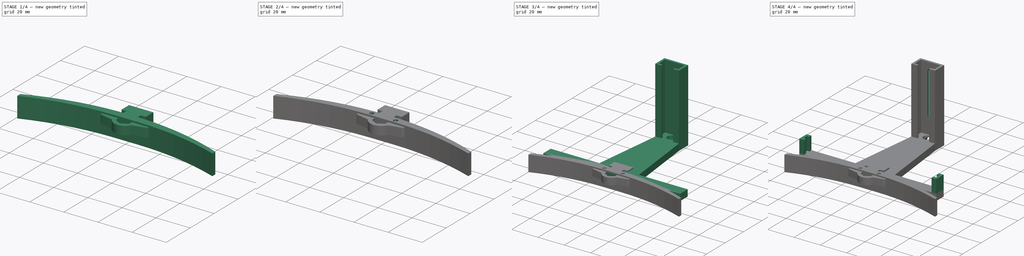
[diagram: build sequence overview — one tinted view per stage of 4, left to right]
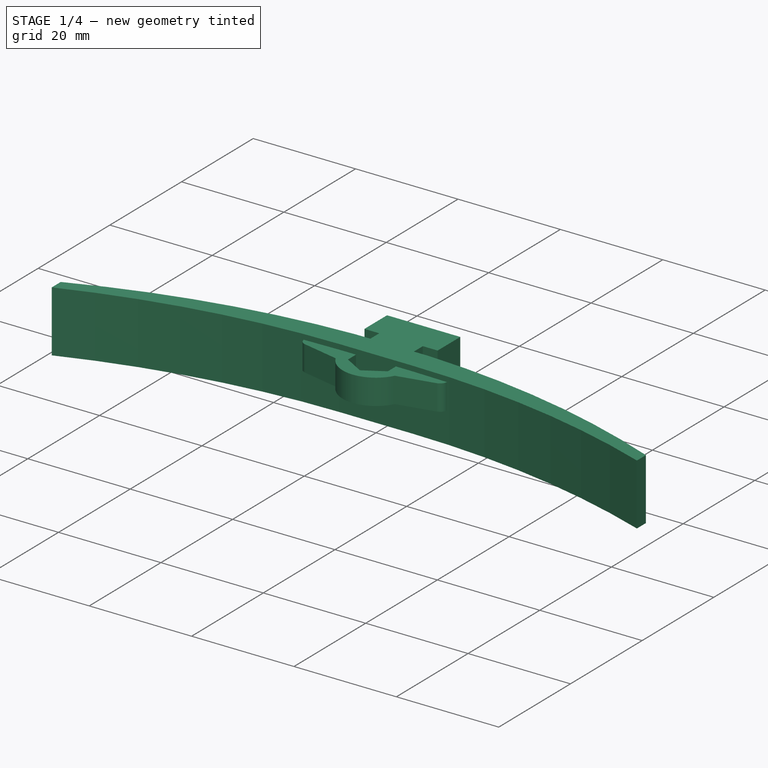
[diagram: stage 1 of 4 — iso view after this stage's code; geometry added in this stage tinted green]
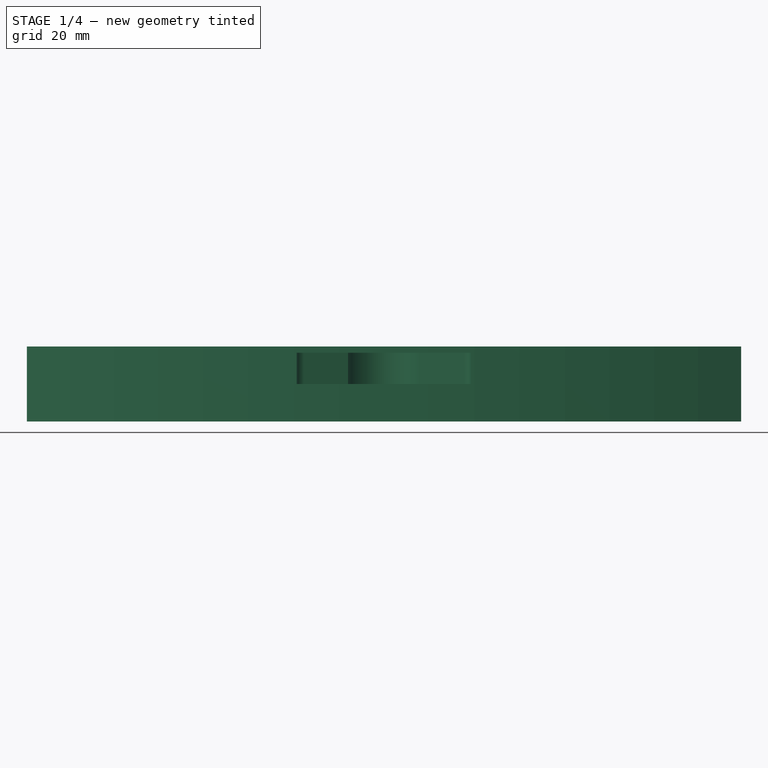
[diagram: stage 1 of 4 — front view after this stage's code; geometry added in this stage tinted green]
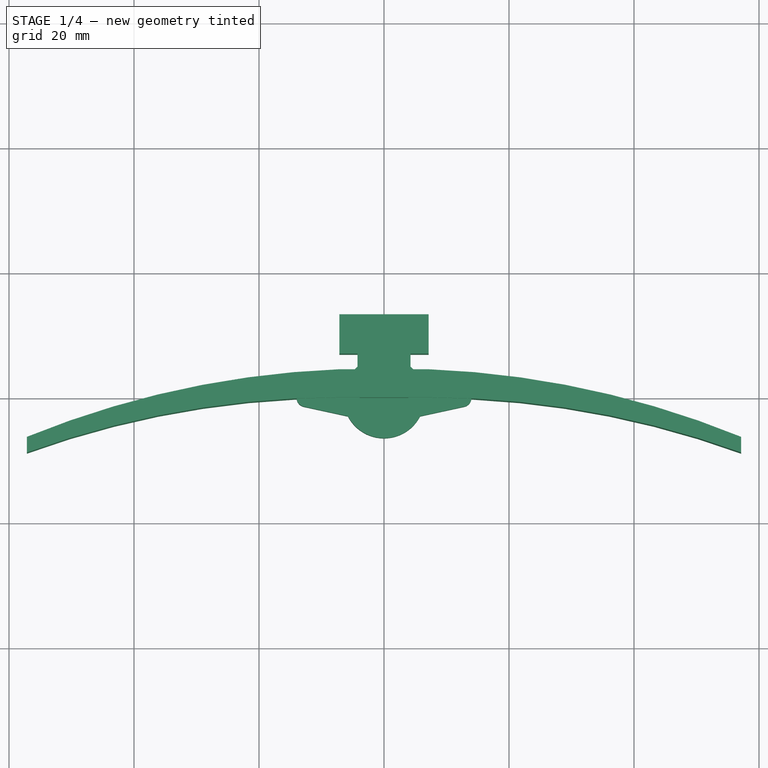
[diagram: stage 1 of 4 — top view after this stage's code; geometry added in this stage tinted green]
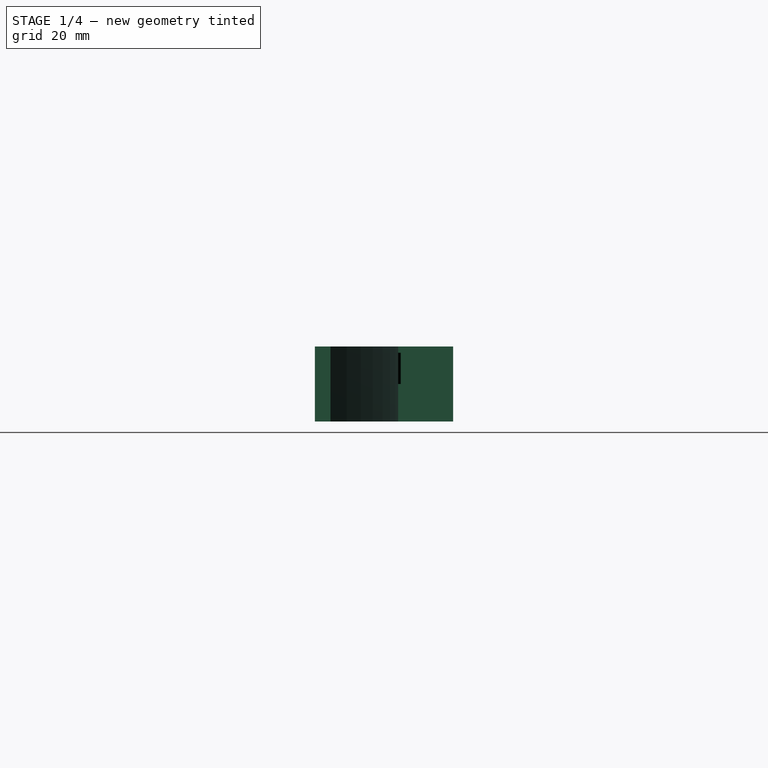
[diagram: stage 1 of 4 — right view after this stage's code; geometry added in this stage tinted green]
FCSTD DOCUMENT  (FreeCAD 0.18R16146 (Git))
Label: marco_litografia
License: CreativeCommons Attribution-NonCommercial
LicenseURL: http://creativecommons.org/licenses/by-nc/4.0/
objects: Sketcher::SketchObject×11, PartDesign::Pad×5, PartDesign::Pocket×5, PartDesign::Body×3, PartDesign::Hole×1
note: 36 computed .brp shape members not serialized (recipe doc carries the construction recipe); baked Part::Feature solids carry a one-line shape summary decoded from their .brp

FEATURE [Sketcher::SketchObject] Sketch002
  ExternalGeometry = -> [Pad001]
  MapMode = 5
  Placement = pos=(0,70,0) rot=(0,0.707107,0.707107;3.14159rad)
  Support = -> [Pad001]
  sketch-geometry (4):
    g0: ArcOfCircle CenterX=0 CenterY=48 CenterZ=0 NormalX=0 NormalY=0 NormalZ=1 AngleXU=0 Radius=2.625 StartAngle=-4.35e-14 EndAngle=3.14159
    g1: ArcOfCircle CenterX=2.3e-15 CenterY=18 CenterZ=0 NormalX=0 NormalY=0 NormalZ=1 AngleXU=0 Radius=2.625 StartAngle=3.14159 EndAngle=6.28319
    g2: LineSegment StartX=-2.625 StartY=48 StartZ=0 EndX=-2.625 EndY=18 EndZ=0
    g3: LineSegment StartX=2.625 StartY=48 StartZ=0 EndX=2.625 EndY=18 EndZ=0
  constraints (10):
    c: Tangent(g0,g3) = 1.5708
    c: Tangent(g0,g2) = -1.5708
    c: Tangent(g2,g1) = -1.5708
    c: Tangent(g3,g1) = 1.5708
    c: Vertical(g2)
    c: Equal(g0,g1)
    c: PointOnObject(g0,g-2)
    c: DistanceX(g0,g0) = 5.25
    c: DistanceY(g1,g0) = 30
    c: DistanceY(g-1,g1) = 18
FEATURE [Sketcher::SketchObject] Sketch003
  MapMode = 5
  Support = -> [XY_Plane001]
  sketch-geometry (16):
    g0: LineSegment StartX=-7.15 StartY=13.3 StartZ=0 EndX=7.15 EndY=13.3 EndZ=0
    g1: LineSegment StartX=7.15 StartY=13.3 StartZ=0 EndX=7.15 EndY=7 EndZ=0
    g2: LineSegment StartX=-7.15 StartY=7 StartZ=0 EndX=-7.15 EndY=13.3 EndZ=0
    g3: LineSegment StartX=-7.15 StartY=7 StartZ=0 EndX=-4.25 EndY=7 EndZ=0
    g4: LineSegment StartX=-4.25 StartY=7 StartZ=0 EndX=-4.25 EndY=4.5 EndZ=0
    g5: LineSegment StartX=-7.15 StartY=0 StartZ=0 EndX=7.15 EndY=0 EndZ=0
    g6: LineSegment StartX=7.15 StartY=4.5 StartZ=0 EndX=4.25 EndY=4.5 EndZ=0
    g7: LineSegment StartX=4.25 StartY=4.5 StartZ=0 EndX=4.25 EndY=7 EndZ=0
    g8: LineSegment StartX=4.25 StartY=7 StartZ=0 EndX=7.15 EndY=7 EndZ=0
    g9: ArcOfCircle CenterX=-7.15 CenterY=-146.19 CenterZ=0 NormalX=0 NormalY=0 NormalZ=1 AngleXU=0 Radius=146.19 StartAngle=1.5708 EndAngle=1.91986
    g10: ArcOfCircle CenterX=7.15 CenterY=-146.19 CenterZ=0 NormalX=0 NormalY=0 NormalZ=1 AngleXU=0 Radius=146.19 StartAngle=1.22173 EndAngle=1.5708
    g11: LineSegment StartX=-57.15 StartY=-8.81635 StartZ=0 EndX=-57.15 EndY=-6.31635 EndZ=0
    g12: ArcOfCircle CenterX=-1.47872 CenterY=-142.69 CenterZ=0 NormalX=0 NormalY=0 NormalZ=1 AngleXU=0 Radius=147.299 StartAngle=1.60931 EndAngle=1.95837
    g13: ArcOfCircle CenterX=1.47872 CenterY=-142.69 CenterZ=0 NormalX=0 NormalY=0 NormalZ=1 AngleXU=0 Radius=147.299 StartAngle=1.18322 EndAngle=1.53229
    g14: LineSegment StartX=57.15 StartY=-8.81635 StartZ=0 EndX=57.15 EndY=-6.31635 EndZ=0
    g15: LineSegment StartX=-7.15 StartY=4.5 StartZ=0 EndX=-4.25 EndY=4.5 EndZ=0
  constraints (46):
    c: Coincident(g0,g1)
    c: Coincident(g2,g0)
    c: Vertical(g1)
    c: Vertical(g2)
    c: Symmetric(g0,g0,g-2)
    c: DistanceX(g0,g0) = 14.3
    c: DistanceY(g2,g2) = 6.3
    c: Coincident(g2,g3)
    c: Horizontal(g3)
    c: Coincident(g3,g4)
    c: Vertical(g4)
    c: Horizontal(g6)
    c: Coincident(g6,g7)
    c: Coincident(g7,g8)
    c: Coincident(g8,g1)
    c: Horizontal(g8)
    c: DistanceX(g3,g7) = 8.5
    c: DistanceY(g4,g4) = 2.5
    c: Equal(g4,g7)
    c: Symmetric(g3,g7,g-2)
    c: Symmetric(g10,g9,g-2)
    c: Coincident(g11,g9)
    c: Vertical(g11)
    c: DistanceY(g11,g11) = 2.5
    c: Coincident(g12,g11)
    c: Vertical(g14)
    c: Coincident(g13,g14)
    c: Equal(g11,g14)
    c: Equal(g9,g10)
    c: Equal(g12,g13)
    c: Coincident(g10,g14)
    c: Angle(g12) = 0.349066
    c: DistanceY(g5,g12) = 4.5
    c: Tangent(g10,g5) = 1.5708
    c: Tangent(g9,g5) = 1.5708
    c: Horizontal(g5)
    c: PointOnObject(g5,g-1)
    c: Symmetric(g12,g13,g-2)
    c: Coincident(g15,g4)
    c: Vertical(g7)
    c: Angle(g9) = 0.349066
    c: Vertical(g5,g12)
    c: Vertical(g15,g2)
    c: DistanceX(g9,g5) = 50
    c: Coincident(g6,g13)
    c: Coincident(g12,g15)
FEATURE [PartDesign::Pad] Pad002
  Length = 12
  Length2 = 100
  Midplane = true
  Profile = -> Sketch003
  Type = 0
FEATURE [PartDesign::Body] Body001  label="Soporte Luces"
  Group = -> [Pad002,Sketch003,Sketch004,Hole,Sketch012,Pocket005,Sketch013,Pocket006]
  Origin = -> Origin001
  Placement = pos=(0,-20,6) rot=(0,0,1;0rad)
  Tip = -> Pocket006
FEATURE [Sketcher::SketchObject] Sketch014
  MapMode = 5
  Support = -> [XY_Plane002]
  sketch-geometry (8):
    g0: ArcOfCircle CenterX=0 CenterY=0 CenterZ=0 NormalX=0 NormalY=0 NormalZ=1 AngleXU=0 Radius=6.5 StartAngle=3.62132 EndAngle=5.80346
    g1: LineSegment StartX=-5.76628 StartY=3 StartZ=0 EndX=-12.8189 EndY=1.46572 EndZ=0
    g2: ArcOfCircle CenterX=-12.5 CenterY=0 CenterZ=0 NormalX=0 NormalY=0 NormalZ=1 AngleXU=0 Radius=1.5 StartAngle=1.78501 EndAngle=4.49818
    g3: LineSegment StartX=-12.8189 StartY=-1.46572 StartZ=0 EndX=-5.76628 EndY=-3 EndZ=0
    g4: LineSegment StartX=12.8189 StartY=-1.46572 StartZ=0 EndX=5.76628 EndY=-3 EndZ=0
    g5: ArcOfCircle CenterX=12.5 CenterY=0 CenterZ=0 NormalX=0 NormalY=0 NormalZ=1 AngleXU=0 Radius=1.5 StartAngle=4.9266 EndAngle=7.63977
    g6: LineSegment StartX=5.76628 StartY=3 StartZ=0 EndX=12.8189 EndY=1.46572 EndZ=0
    g7: ArcOfCircle CenterX=0 CenterY=0 CenterZ=0 NormalX=0 NormalY=0 NormalZ=1 AngleXU=0 Radius=6.5 StartAngle=0.479729 EndAngle=2.66186
  constraints (22):
    c: Coincident(g0,g-1)
    c: Diameter(g0) = 13
    c: PointOnObject(g2,g-1)
    c: Vertical(g2,g1)
    c: Diameter(g2) = 3
    c: Tangent(g2,g3) = -1.5708
    c: Tangent(g2,g1) = -1.5708
    c: DistanceX(g2,g0) = 12.5
    c: Tangent(g5,g4) = 1.5708
    c: Tangent(g5,g6) = 1.5708
    c: Vertical(g4,g6)
    c: Vertical(g5,g4)
    c: Symmetric(g2,g5,g-2)
    c: Coincident(g0,g3)
    c: Coincident(g7,g1)
    c: Equal(g0,g7)
    c: PointOnObject(g0,g4)
    c: PointOnObject(g7,g6)
    c: Coincident(g0,g7)
    c: Symmetric(g1,g6,g-2)
    c: DistanceY(g0,g1) = 6
    c: Equal(g2,g5)
FEATURE [PartDesign::Pad] Pad004
  Length = 5
  Length2 = 100
  Profile = -> Sketch014
  Type = 0
FEATURE [Sketcher::SketchObject] Sketch015
  MapMode = 5
  Placement = pos=(0,0,5) rot=(0,0,1;0rad)
  Support = -> [Pad004]
  sketch-geometry (7):
    g0: LineSegment StartX=3.89711 StartY=-2.25 StartZ=0 EndX=3.89711 EndY=2.25 EndZ=0
    g1: LineSegment StartX=3.89711 StartY=2.25 StartZ=0 EndX=-9e-16 EndY=4.5 EndZ=0
    g2: LineSegment StartX=-9e-16 StartY=4.5 StartZ=0 EndX=-3.89711 EndY=2.25 EndZ=0
    g3: LineSegment StartX=-3.89711 StartY=2.25 StartZ=0 EndX=-3.89711 EndY=-2.25 EndZ=0
    g4: LineSegment StartX=-3.89711 StartY=-2.25 StartZ=0 EndX=0 EndY=-4.5 EndZ=0
    g5: LineSegment StartX=0 StartY=-4.5 StartZ=0 EndX=3.89711 EndY=-2.25 EndZ=0
    g6: Circle [constr] CenterX=0 CenterY=0 CenterZ=0 NormalX=0 NormalY=0 NormalZ=1 AngleXU=0 Radius=4.5
  constraints (16):
    c: Coincident(g0,g1)
    c: Coincident(g1,g2)
    c: Coincident(g2,g3)
    c: Coincident(g3,g4)
    c: Coincident(g4,g5)
    c: Coincident(g5,g0)
    c: Equal(g0, g1-g5) x5
    c: PointOnObject(g0,g6)
    c: PointOnObject(g1,g6)
    c: PointOnObject(g2,g6)
    c: PointOnObject(g3,g6)
    c: PointOnObject(g4,g6)
    c: PointOnObject(g5,g6)
    c: Coincident(g6,g-1)
    c: Diameter(g6) = 9
    c: PointOnObject(g4,g-2)
FEATURE [PartDesign::Pocket] Pocket007
  BaseFeature = -> Pad004
  Length = 3.5
  Length2 = 100
  Profile = -> Sketch015
  Type = 0
FEATURE [PartDesign::Body] Body002  label="Palomilla"
  Group = -> [Sketch014,Pad004,Sketch015,Pocket007]
  Origin = -> Origin002
  Placement = pos=(30,25,0) rot=(0,0,1;0rad)
  Tip = -> Pocket007
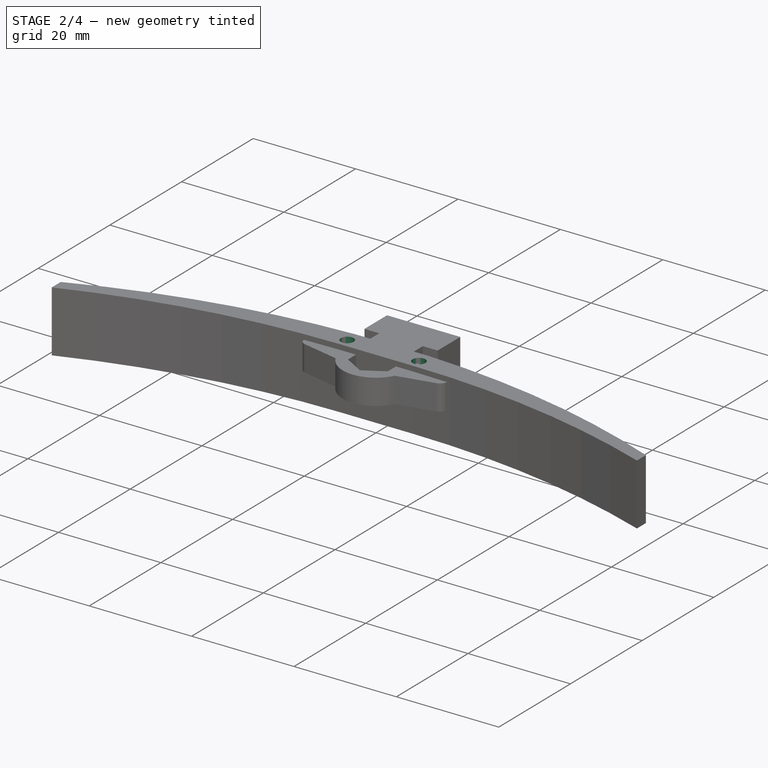
[diagram: stage 2 of 4 — iso view after this stage's code; geometry added in this stage tinted green]
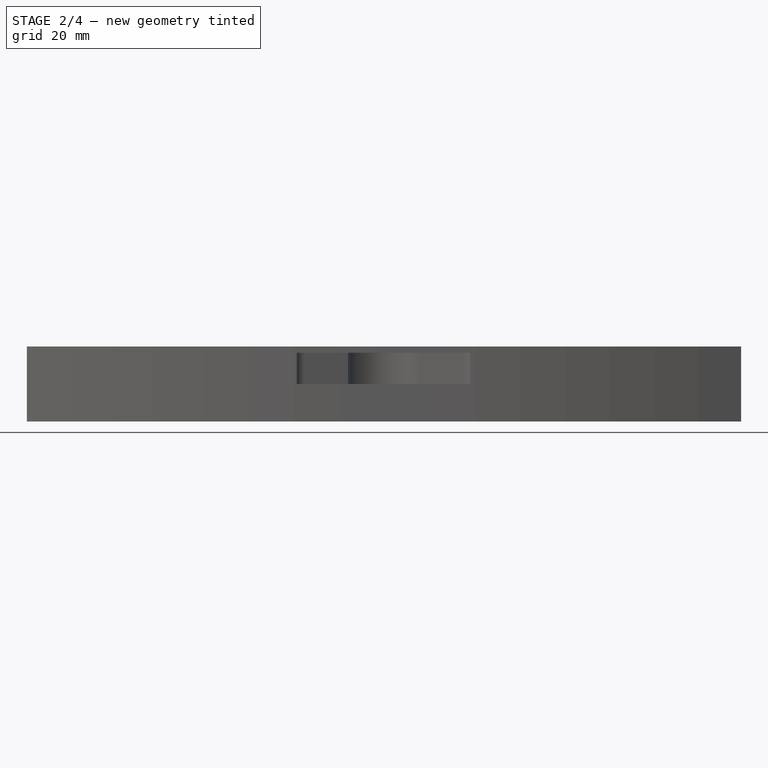
[diagram: stage 2 of 4 — front view after this stage's code; geometry added in this stage tinted green]
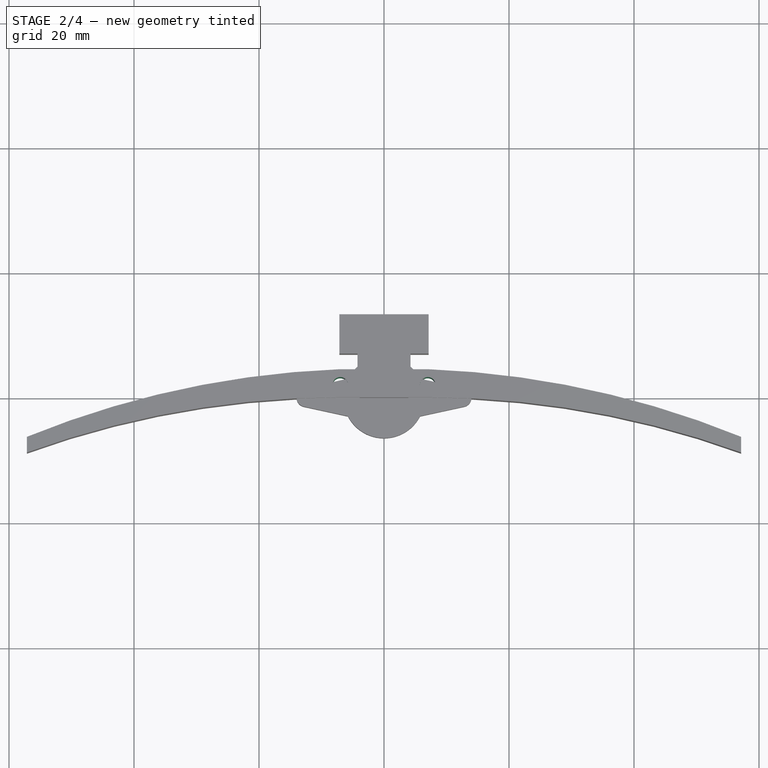
[diagram: stage 2 of 4 — top view after this stage's code; geometry added in this stage tinted green]
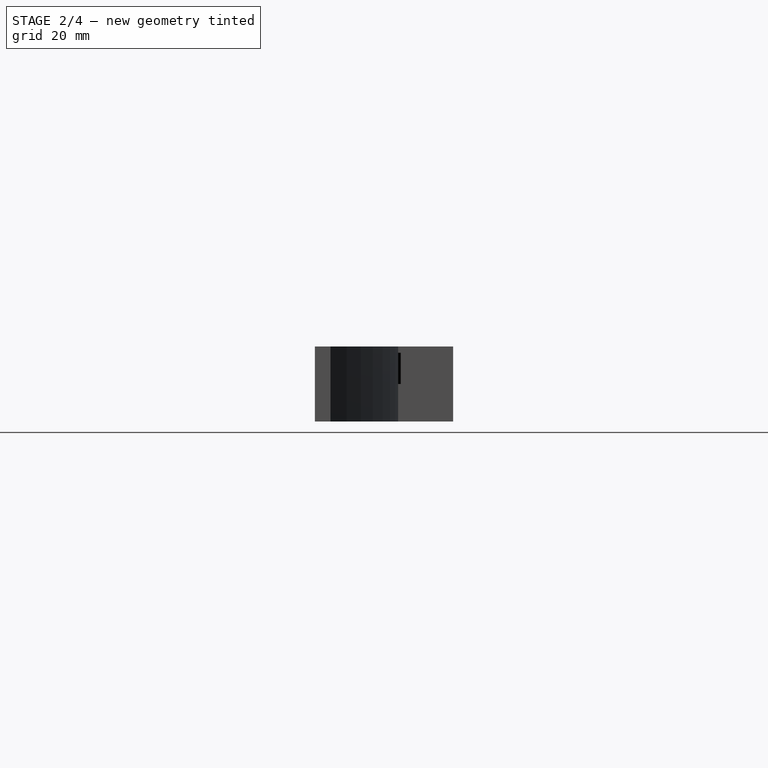
[diagram: stage 2 of 4 — right view after this stage's code; geometry added in this stage tinted green]
FEATURE [Sketcher::SketchObject] Sketch004
  MapMode = 5
  Placement = pos=(0,13.3,0) rot=(0,0.707107,0.707107;3.14159rad)
  Support = -> [Pad002]
  sketch-geometry (1):
    g0: Circle CenterX=0 CenterY=0 CenterZ=0 NormalX=0 NormalY=0 NormalZ=1 AngleXU=0 Radius=4.39341
  constraints (1):
    c: Coincident(g0,g-1)
FEATURE [PartDesign::Hole] Hole
  BaseFeature = -> Pad002
  Depth = 9
  DepthType = 0
  Diameter = 5.5
  DrillPoint = 0
  DrillPointAngle = 118
  HoleCutCountersinkAngle = 90
  HoleCutDepth = 0
  HoleCutDiameter = 5
  HoleCutType = 0
  ModelActualThread = false
  Profile = -> Sketch004
  Tapered = false
  TaperedAngle = 90
  ThreadAngle = 0
  ThreadClass = 4
  ThreadCutOffInner = 0
  ThreadCutOffOuter = 0
  ThreadDirection = 0
  ThreadFit = 0
  ThreadPitch = 0
  ThreadSize = 6
  ThreadType = 1
  Threaded = false
FEATURE [PartDesign::Body] Body  label="Marco"
  Group = -> [Sketch,Pad,Sketch001,Pad001,Pad003,Sketch011,Sketch002,Pocket,Sketch010,Pocket004]
  Origin = -> Origin
  Tip = -> Pocket004
FEATURE [Sketcher::SketchObject] Sketch012
  MapMode = 5
  Placement = pos=(0,13.3,0) rot=(0,0.707107,0.707107;3.14159rad)
  Support = -> [Hole]
  sketch-geometry (1):
    g0: Circle CenterX=0 CenterY=0 CenterZ=0 NormalX=0 NormalY=0 NormalZ=1 AngleXU=0 Radius=3.5
  constraints (2):
    c: Coincident(g0,g-1)
    c: Diameter(g0) = 7
FEATURE [PartDesign::Pocket] Pocket005
  BaseFeature = -> Hole
  Length = 6.2
  Length2 = 100
  Profile = -> Sketch012
  Type = 0
FEATURE [Sketcher::SketchObject] Sketch013
  MapMode = 5
  Placement = pos=(0,0,6) rot=(0,0,1;0rad)
  Support = -> [Pocket005]
  sketch-geometry (2):
    g0: Circle CenterX=7 CenterY=2 CenterZ=0 NormalX=0 NormalY=0 NormalZ=1 AngleXU=0 Radius=1.25
    g1: Circle CenterX=-7 CenterY=2 CenterZ=0 NormalX=0 NormalY=0 NormalZ=1 AngleXU=0 Radius=1.25
  constraints (5):
    c: Diameter(g0) = 2.5
    c: Equal(g1,g0)
    c: Symmetric(g1,g0,g-2)
    c: DistanceY(g-1,g1) = 2
    c: DistanceX(g1,g0) = 14
FEATURE [PartDesign::Pocket] Pocket006
  BaseFeature = -> Pocket005
  Length = 5
  Length2 = 100
  Profile = -> Sketch013
  Type = 1
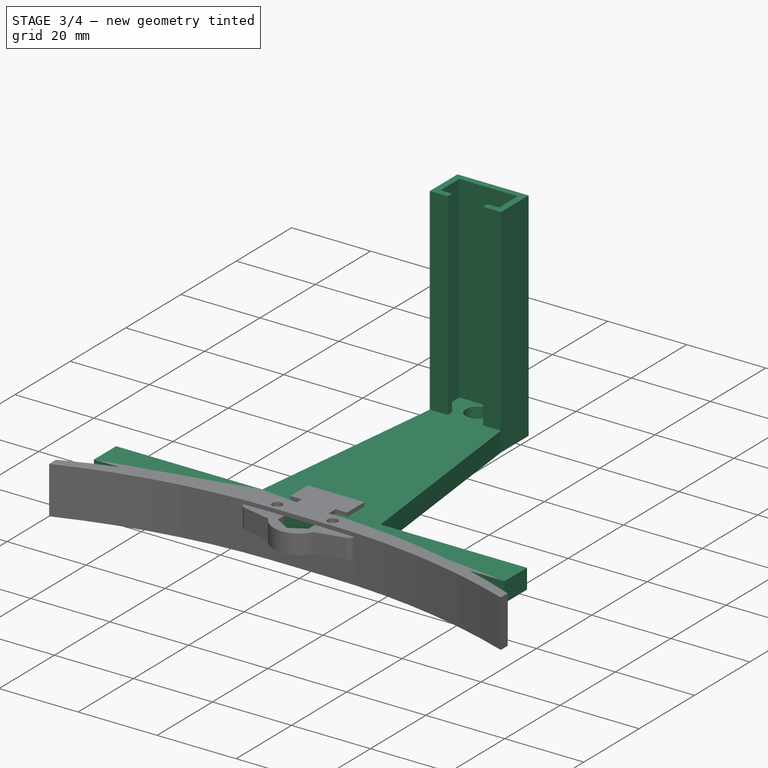
[diagram: stage 3 of 4 — iso view after this stage's code; geometry added in this stage tinted green]
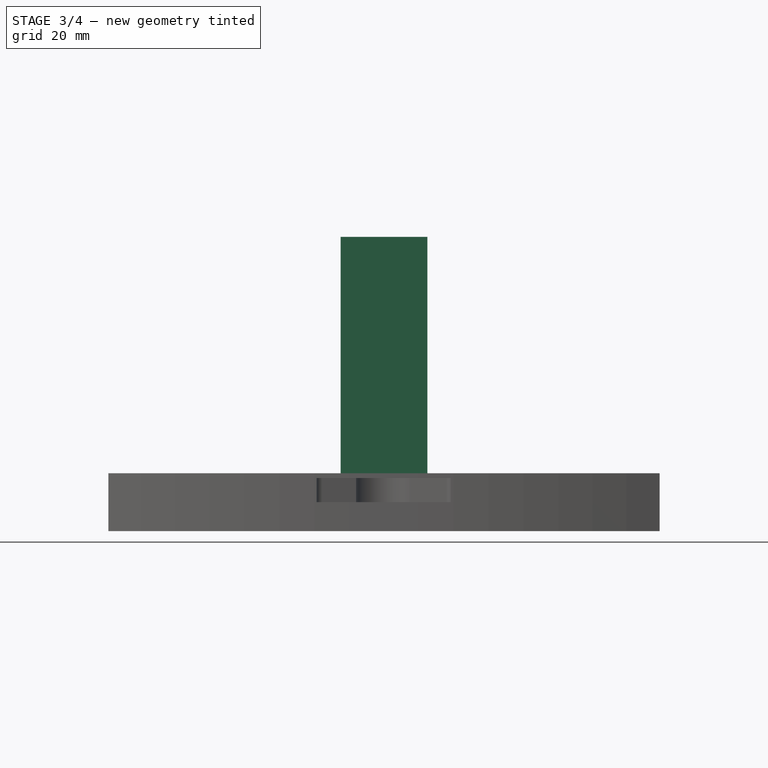
[diagram: stage 3 of 4 — front view after this stage's code; geometry added in this stage tinted green]
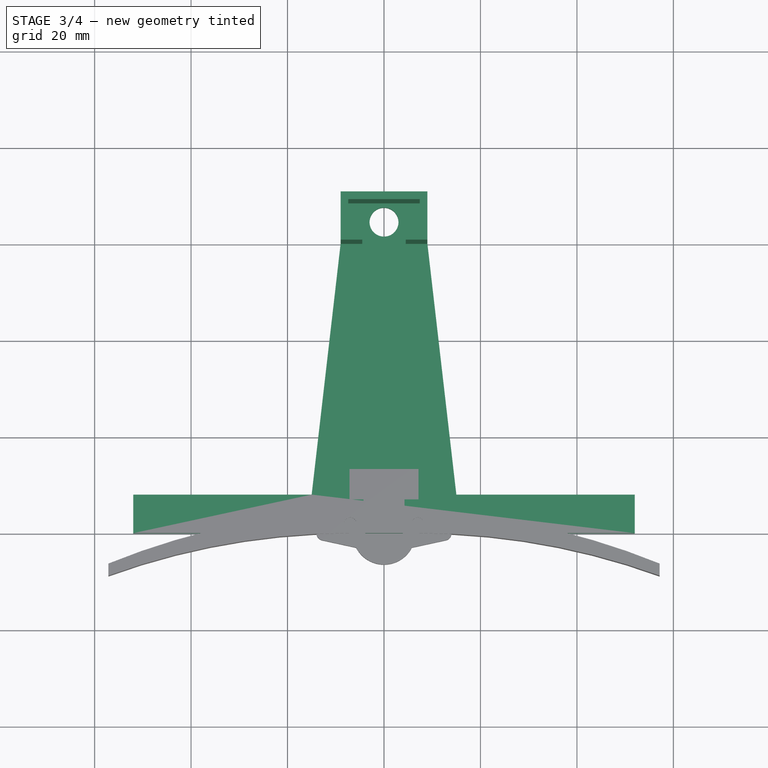
[diagram: stage 3 of 4 — top view after this stage's code; geometry added in this stage tinted green]
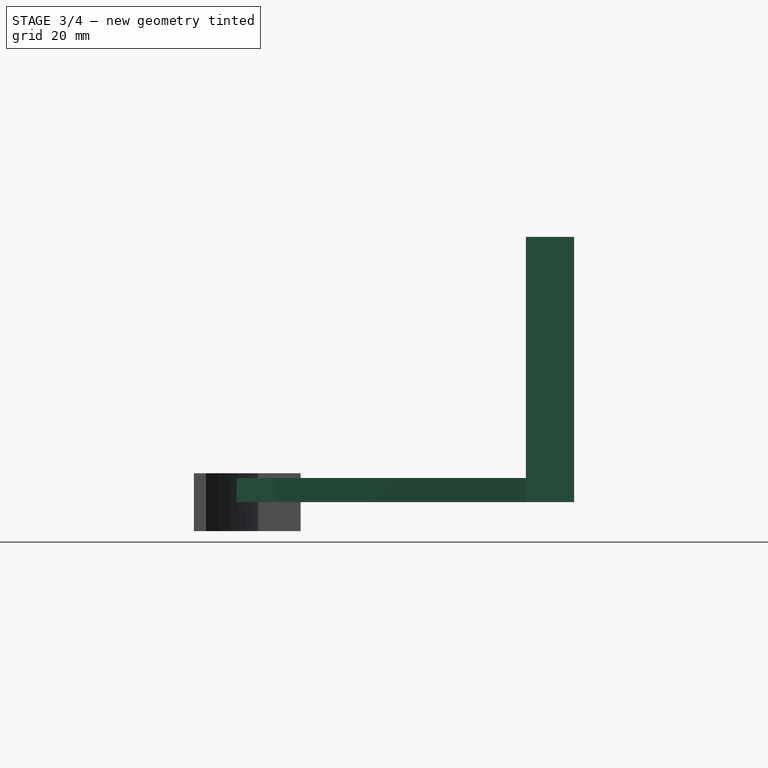
[diagram: stage 3 of 4 — right view after this stage's code; geometry added in this stage tinted green]
FEATURE [Sketcher::SketchObject] Sketch
  MapMode = 5
  Support = -> [XY_Plane]
  sketch-geometry (11):
    g0: LineSegment StartX=-52 StartY=0 StartZ=0 EndX=52 EndY=0 EndZ=0
    g1: LineSegment StartX=52 StartY=0 StartZ=0 EndX=52 EndY=8 EndZ=0
    g2: LineSegment StartX=52 StartY=8 StartZ=0 EndX=15 EndY=8 EndZ=0
    g3: LineSegment StartX=15 StartY=8 StartZ=0 EndX=9 EndY=60 EndZ=0
    g4: LineSegment StartX=9 StartY=60 StartZ=0 EndX=9 EndY=70 EndZ=0
    g5: LineSegment StartX=9 StartY=70 StartZ=0 EndX=-9 EndY=70 EndZ=0
    g6: LineSegment StartX=-9 StartY=70 StartZ=0 EndX=-9 EndY=60 EndZ=0
    g7: LineSegment StartX=-9 StartY=60 StartZ=0 EndX=-15 EndY=8 EndZ=0
    g8: LineSegment StartX=-15 StartY=8 StartZ=0 EndX=-52 EndY=8 EndZ=0
    g9: LineSegment StartX=-52 StartY=8 StartZ=0 EndX=-52 EndY=0 EndZ=0
    g10: Circle CenterX=0 CenterY=64.5 CenterZ=0 NormalX=0 NormalY=0 NormalZ=1 AngleXU=0 Radius=3
  constraints (30):
    c: PointOnObject(g0,g-1)
    c: Coincident(g0,g1)
    c: Vertical(g1)
    c: Coincident(g1,g2)
    c: Horizontal(g2)
    c: Coincident(g2,g3)
    c: Coincident(g3,g4)
    c: Vertical(g4)
    c: Coincident(g4,g5)
    c: Horizontal(g5)
    c: Coincident(g5,g6)
    c: Vertical(g6)
    c: Coincident(g6,g7)
    c: Coincident(g7,g8)
    c: Horizontal(g8)
    c: Coincident(g8,g9)
    c: Coincident(g9,g0)
    c: Symmetric(g0,g0,g-2)
    c: Symmetric(g7,g2,g-2)
    c: Symmetric(g6,g3,g-2)
    c: DistanceX(g0,g0) = 104
    c: DistanceY(g1,g1) = 8
    c: DistanceY(g-1,g6) = 60
    c: DistanceX(g5,g5) = 18
    c: DistanceX(g7,g2) = 30
    c: Equal(g1,g9)
    c: DistanceY(g4,g4) = 10
    c: PointOnObject(g10,g-2)
    c: Radius(g10) = 3
    c: DistanceY(g6,g10) = 4.5
FEATURE [PartDesign::Pad] Pad
  Length = 5
  Length2 = 100
  Profile = -> Sketch
  Type = 0
FEATURE [Sketcher::SketchObject] Sketch001
  ExternalGeometry = -> [Pad]
  MapMode = 5
  Placement = pos=(0,0,5) rot=(0,0,1;0rad)
  Support = -> [Pad]
  sketch-geometry (12):
    g0: LineSegment StartX=-9 StartY=70 StartZ=0 EndX=-9 EndY=60 EndZ=0
    g1: LineSegment StartX=-9 StartY=60 StartZ=0 EndX=-4.5 EndY=60 EndZ=0
    g2: LineSegment StartX=-4.5 StartY=60 StartZ=0 EndX=-4.5 EndY=61.6 EndZ=0
    g3: LineSegment StartX=-4.5 StartY=61.6 StartZ=0 EndX=-7.4 EndY=61.6 EndZ=0
    g4: LineSegment StartX=-7.4 StartY=61.6 StartZ=0 EndX=-7.4 EndY=68.4 EndZ=0
    g5: LineSegment StartX=-7.4 StartY=68.4 StartZ=0 EndX=7.4 EndY=68.4 EndZ=0
    g6: LineSegment StartX=7.4 StartY=68.4 StartZ=0 EndX=7.4 EndY=61.6 EndZ=0
    g7: LineSegment StartX=7.4 StartY=61.6 StartZ=0 EndX=4.5 EndY=61.6 EndZ=0
    g8: LineSegment StartX=4.5 StartY=61.6 StartZ=0 EndX=4.5 EndY=60 EndZ=0
    g9: LineSegment StartX=4.5 StartY=60 StartZ=0 EndX=9 EndY=60 EndZ=0
    g10: LineSegment StartX=9 StartY=60 StartZ=0 EndX=9 EndY=70 EndZ=0
    g11: LineSegment StartX=9 StartY=70 StartZ=0 EndX=-9 EndY=70 EndZ=0
  constraints (30):
    c: Coincident(g-3,g0)
    c: Coincident(g0,g1)
    c: Coincident(g1,g2)
    c: Coincident(g2,g3)
    c: Horizontal(g3)
    c: Coincident(g3,g4)
    c: Vertical(g4)
    c: Coincident(g4,g5)
    c: Coincident(g5,g6)
    c: Vertical(g6)
    c: Coincident(g6,g7)
    c: Coincident(g7,g8)
    c: Vertical(g8)
    c: Coincident(g8,g9)
    c: Coincident(g9,g-4)
    c: Coincident(g10,g9)
    c: Coincident(g10,g-4)
    c: Coincident(g11,g10)
    c: Coincident(g11,g0)
    c: Horizontal(g9)
    c: Horizontal(g1)
    c: Symmetric(g0,g9,g-2)
    c: Symmetric(g2,g7,g-2)
    c: Symmetric(g4,g5,g-2)
    c: DistanceX(g0,g4) = 1.6
    c: DistanceY(g4,g0) = 1.6
    c: DistanceY(g2,g2) = 1.6
    c: DistanceX(g1,g8) = 9
    c: Vertical(g2)
    c: Horizontal(g7)
FEATURE [PartDesign::Pad] Pad001
  BaseFeature = -> Pad
  Length = 50
  Length2 = 100
  Profile = -> Sketch001
  Type = 0
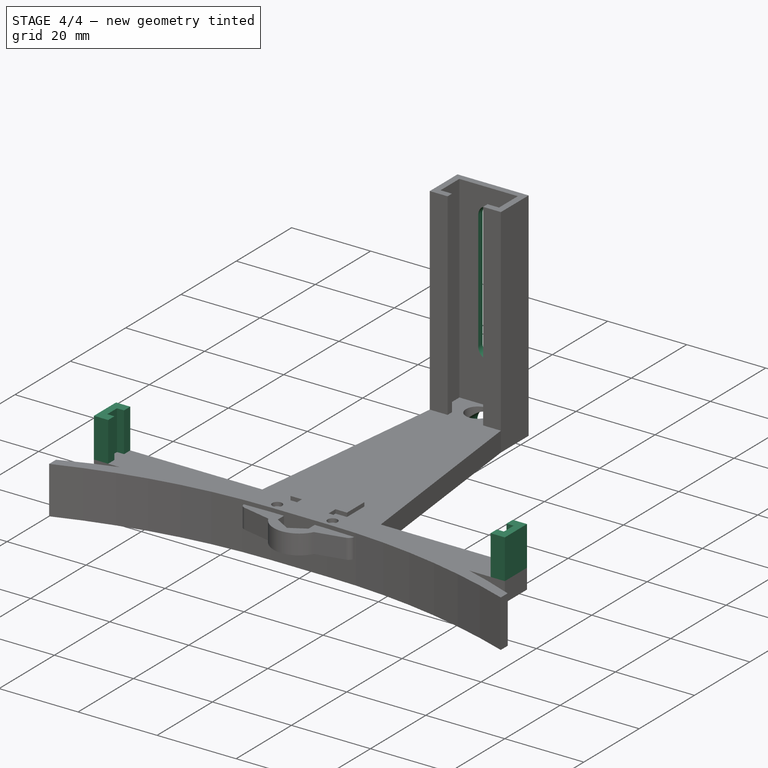
[diagram: stage 4 of 4 — iso view after this stage's code; geometry added in this stage tinted green]
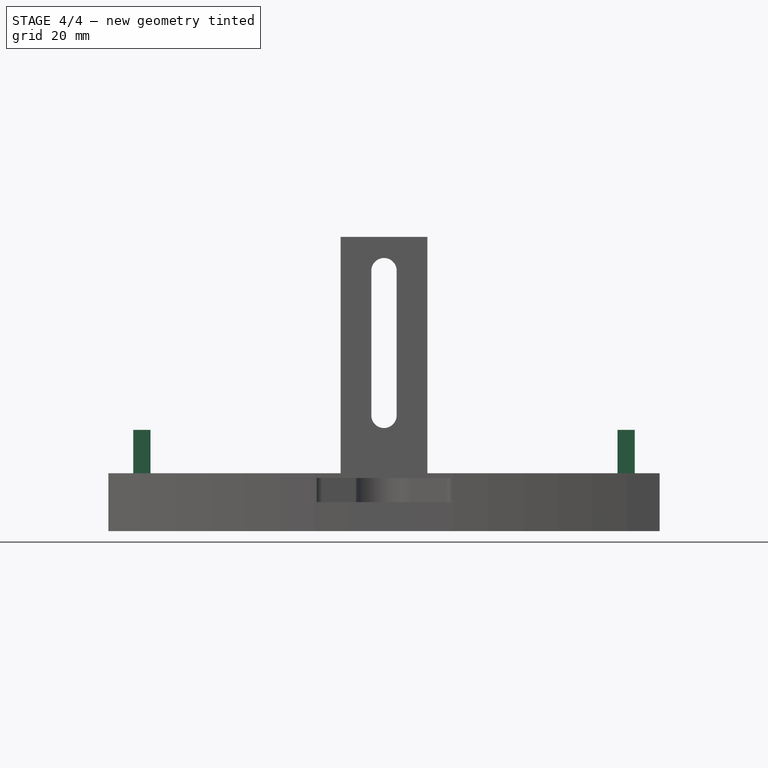
[diagram: stage 4 of 4 — front view after this stage's code; geometry added in this stage tinted green]
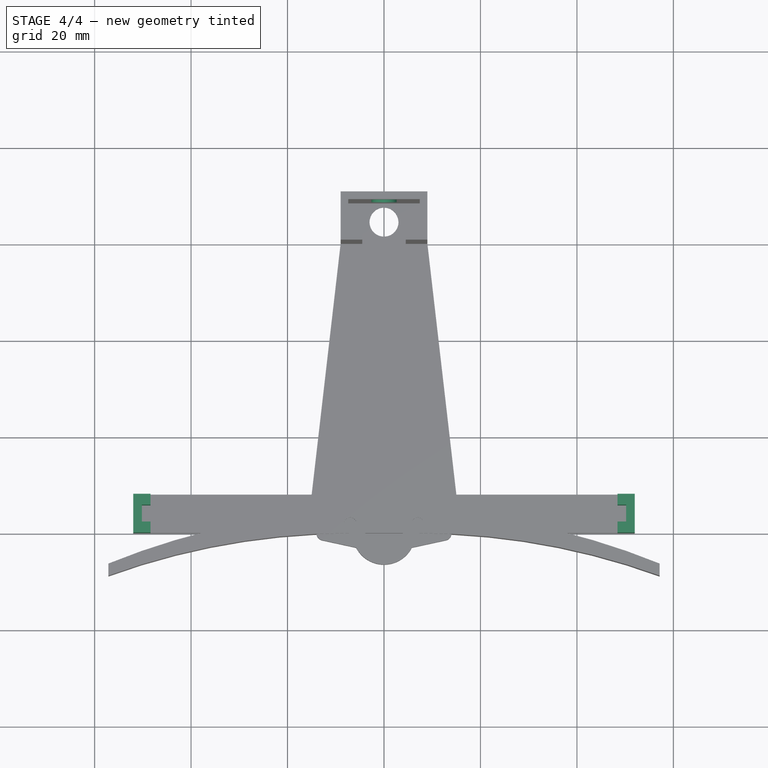
[diagram: stage 4 of 4 — top view after this stage's code; geometry added in this stage tinted green]
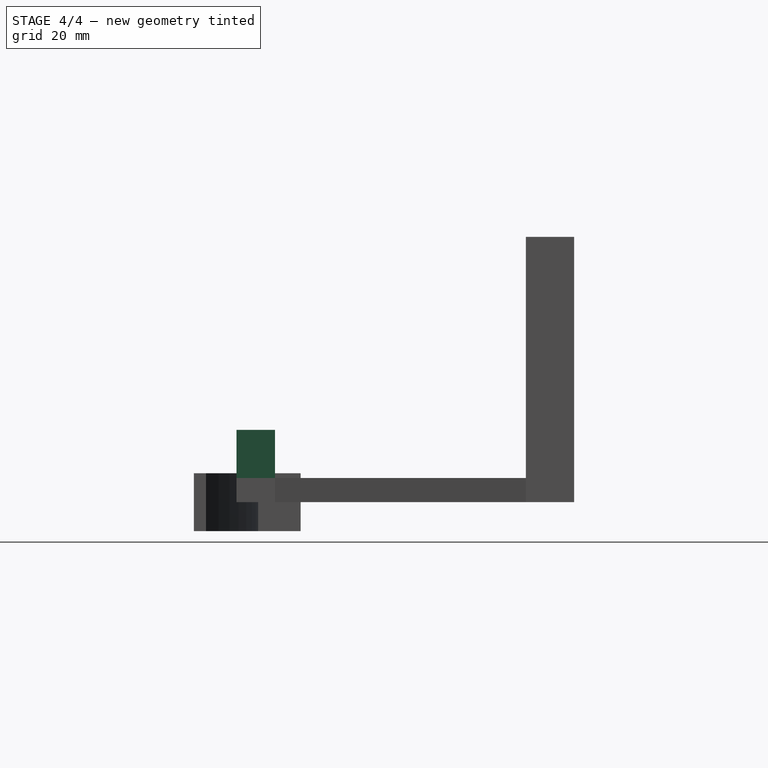
[diagram: stage 4 of 4 — right view after this stage's code; geometry added in this stage tinted green]
FEATURE [Sketcher::SketchObject] Sketch011
  ExternalGeometry = -> [Pad]
  MapMode = 5
  Placement = pos=(0,0,5) rot=(0,0,1;0rad)
  Support = -> [Pad]
  sketch-geometry (28):
    g0: LineSegment StartX=-52 StartY=0 StartZ=0 EndX=-48.4 EndY=0 EndZ=0
    g1: LineSegment StartX=-48.4 StartY=0 StartZ=0 EndX=-48.4 EndY=2.25 EndZ=0
    g2: LineSegment StartX=-48.4 StartY=2.25 StartZ=0 EndX=-50.2 EndY=2.25 EndZ=0
    g3: LineSegment StartX=-50.2 StartY=2.25 StartZ=0 EndX=-50.2 EndY=5.75 EndZ=0
    g4: LineSegment StartX=-50.2 StartY=5.75 StartZ=0 EndX=-48.4 EndY=5.75 EndZ=0
    g5: LineSegment StartX=-48.4 StartY=5.75 StartZ=0 EndX=-48.4 EndY=8 EndZ=0
    g6: LineSegment StartX=-48.4 StartY=8 StartZ=0 EndX=-52 EndY=8 EndZ=0
    g7: LineSegment StartX=-52 StartY=8 StartZ=0 EndX=-52 EndY=0 EndZ=0
    g8: LineSegment StartX=-9 StartY=70 StartZ=0 EndX=-9 EndY=60 EndZ=0
    g9: LineSegment StartX=-9 StartY=60 StartZ=0 EndX=-4.5 EndY=60 EndZ=0
    g10: LineSegment StartX=-4.5 StartY=60 StartZ=0 EndX=-4.5 EndY=61.6 EndZ=0
    g11: LineSegment StartX=-4.5 StartY=61.6 StartZ=0 EndX=-7.4 EndY=61.6 EndZ=0
    g12: LineSegment StartX=-7.4 StartY=61.6 StartZ=0 EndX=-7.4 EndY=68.4 EndZ=0
    g13: LineSegment StartX=-7.4 StartY=68.4 StartZ=0 EndX=7.4 EndY=68.4 EndZ=0
    g14: LineSegment StartX=7.4 StartY=68.4 StartZ=0 EndX=7.4 EndY=61.6 EndZ=0
    g15: LineSegment StartX=7.4 StartY=61.6 StartZ=0 EndX=4.5 EndY=61.6 EndZ=0
    g16: LineSegment StartX=4.5 StartY=61.6 StartZ=0 EndX=4.5 EndY=60 EndZ=0
    g17: LineSegment StartX=4.5 StartY=60 StartZ=0 EndX=9 EndY=60 EndZ=0
    g18: LineSegment StartX=9 StartY=60 StartZ=0 EndX=9 EndY=70 EndZ=0
    g19: LineSegment StartX=9 StartY=70 StartZ=0 EndX=-9 EndY=70 EndZ=0
    g20: LineSegment StartX=52 StartY=0 StartZ=0 EndX=48.4 EndY=0 EndZ=0
    g21: LineSegment StartX=48.4 StartY=0 StartZ=0 EndX=48.4 EndY=2.25 EndZ=0
    g22: LineSegment StartX=48.4 StartY=2.25 StartZ=0 EndX=50.2 EndY=2.25 EndZ=0
    g23: LineSegment StartX=50.2 StartY=2.25 StartZ=0 EndX=50.2 EndY=5.75 EndZ=0
    g24: LineSegment StartX=50.2 StartY=5.75 StartZ=0 EndX=48.4 EndY=5.75 EndZ=0
    g25: LineSegment StartX=48.4 StartY=5.75 StartZ=0 EndX=48.4 EndY=8 EndZ=0
    g26: LineSegment StartX=48.4 StartY=8 StartZ=0 EndX=52 EndY=8 EndZ=0
    g27: LineSegment StartX=52 StartY=8 StartZ=0 EndX=52 EndY=0 EndZ=0
  constraints (77):
    c: Coincident(g1,g2)
    c: Horizontal(g2)
    c: Coincident(g2,g3)
    c: Coincident(g3,g4)
    c: Horizontal(g4)
    c: Coincident(g4,g5)
    c: Vertical(g5)
    c: Vertical(g7)
    c: Horizontal(g6)
    c: Vertical(g3)
    c: Vertical(g1,g4)
    c: DistanceY(g3,g3) = 3.5
    c: Equal(g1,g5)
    c: DistanceX(g2,g2) = 1.8
    c: Vertical(g1)
    c: Horizontal(g0)
    c: PointOnObject(g0,g-1)
    c: Vertical(g7,g-4)
    c: Horizontal(g6,g-3)
    c: DistanceX(g-4,g1) = 3.6
    c: Coincident(g-5,g8)
    c: Coincident(g8,g9)
    c: Coincident(g9,g10)
    c: Coincident(g10,g11)
    c: Horizontal(g11)
    c: Coincident(g11,g12)
    c: Vertical(g12)
    c: Coincident(g12,g13)
    c: Coincident(g13,g14)
    c: Vertical(g14)
    c: Coincident(g14,g15)
    c: Coincident(g15,g16)
    c: Vertical(g16)
    c: Coincident(g16,g17)
    c: Coincident(g17,g-6)
    c: Coincident(g18,g17)
    c: Coincident(g18,g-6)
    c: Coincident(g19,g18)
    c: Coincident(g19,g8)
    c: Horizontal(g17)
    c: Horizontal(g9)
    c: Symmetric(g8,g17,g-2)
    c: Symmetric(g10,g15,g-2)
    c: Symmetric(g12,g13,g-2)
    c: DistanceX(g8,g12) = 1.6
    c: DistanceY(g12,g8) = 1.6
    c: DistanceY(g10,g10) = 1.6
    c: DistanceX(g9,g16) = 9
    c: Vertical(g10)
    c: Horizontal(g15)
    c: Coincident(g7,g0)
    c: Coincident(g0,g1)
    c: Coincident(g7,g6)
    c: Coincident(g5,g6)
    c: Coincident(g21,g22)
    c: Horizontal(g22)
    c: Coincident(g22,g23)
    c: Coincident(g23,g24)
    c: Horizontal(g24)
    c: Coincident(g24,g25)
    c: Vertical(g25)
    c: Horizontal(g26)
    c: Vertical(g23)
    c: Equal(g21,g25)
    c: Vertical(g21)
    c: Horizontal(g20)
    c: Coincident(g27,g20)
    c: Coincident(g20,g21)
    c: Coincident(g27,g26)
    c: Coincident(g25,g26)
    c: Coincident(g26,g-7)
    c: Coincident(g20,g-7)
    c: Equal(g0,g20)
    c: Equal(g23,g3)
    c: Equal(g26,g20)
    c: Equal(g25,g21)
    c: Equal(g24,g4)
FEATURE [PartDesign::Pad] Pad003
  BaseFeature = -> Pad001
  Length = 10
  Length2 = 100
  Profile = -> Sketch011
  Type = 0
FEATURE [PartDesign::Pocket] Pocket
  BaseFeature = -> Pad003
  Length = 2
  Length2 = 100
  Profile = -> Sketch002
  Type = 2
FEATURE [Sketcher::SketchObject] Sketch010
  MapMode = 5
  Placement = pos=(0,70,0) rot=(0,0.707107,0.707107;3.14159rad)
  Support = -> [Pocket]
  sketch-geometry (1):
    g0: Circle CenterX=0 CenterY=0 CenterZ=0 NormalX=0 NormalY=0 NormalZ=1 AngleXU=0 Radius=4
  constraints (2):
    c: Radius(g0) = 4
    c: Coincident(g0,g-1)
FEATURE [PartDesign::Pocket] Pocket004
  BaseFeature = -> Pocket
  Length = 9
  Length2 = 100
  Profile = -> Sketch010
  Type = 0
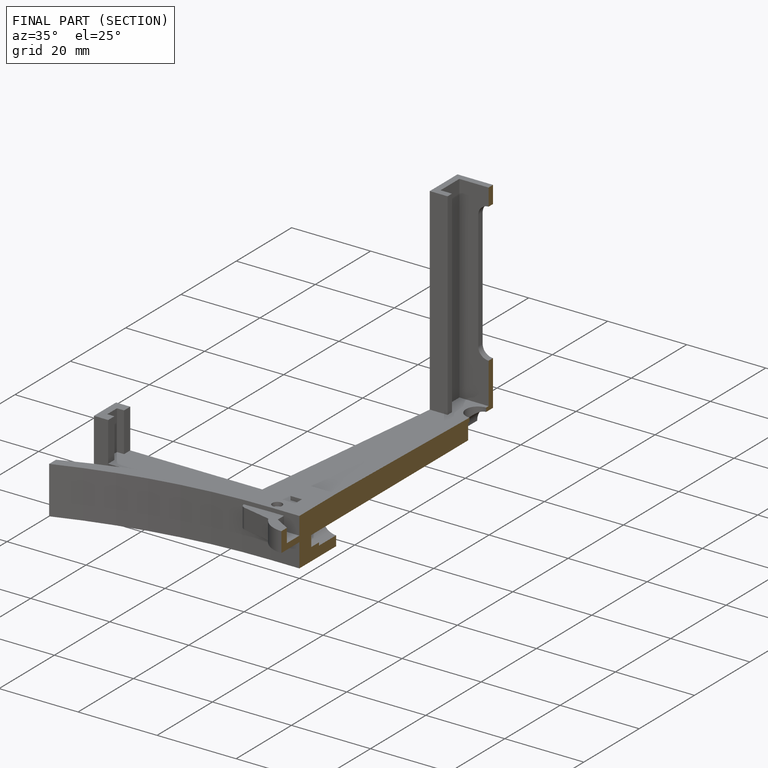
[diagram: finished part — half-section view (interior)]
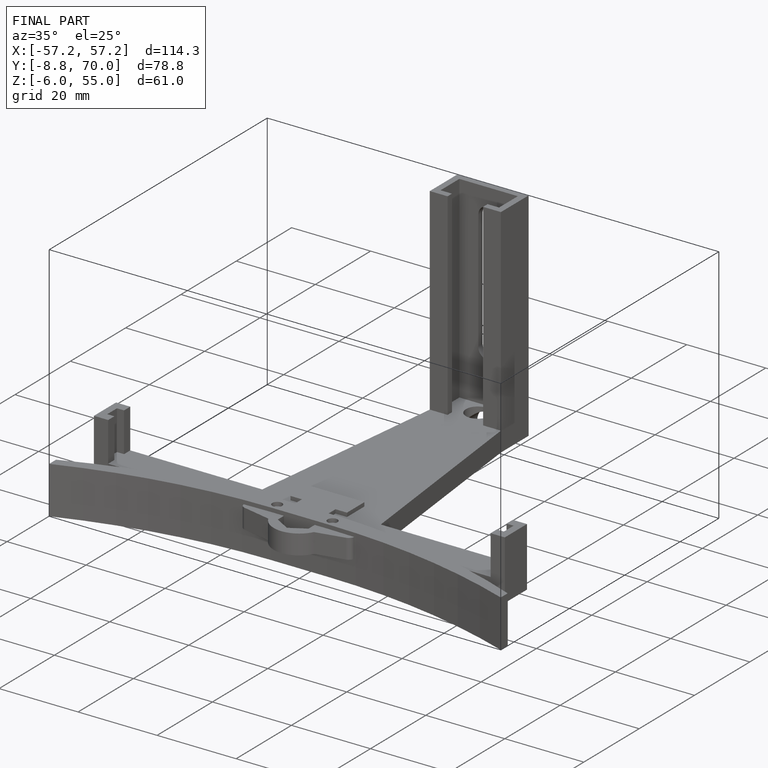
[diagram: finished part — iso view with bounding-box wireframe]
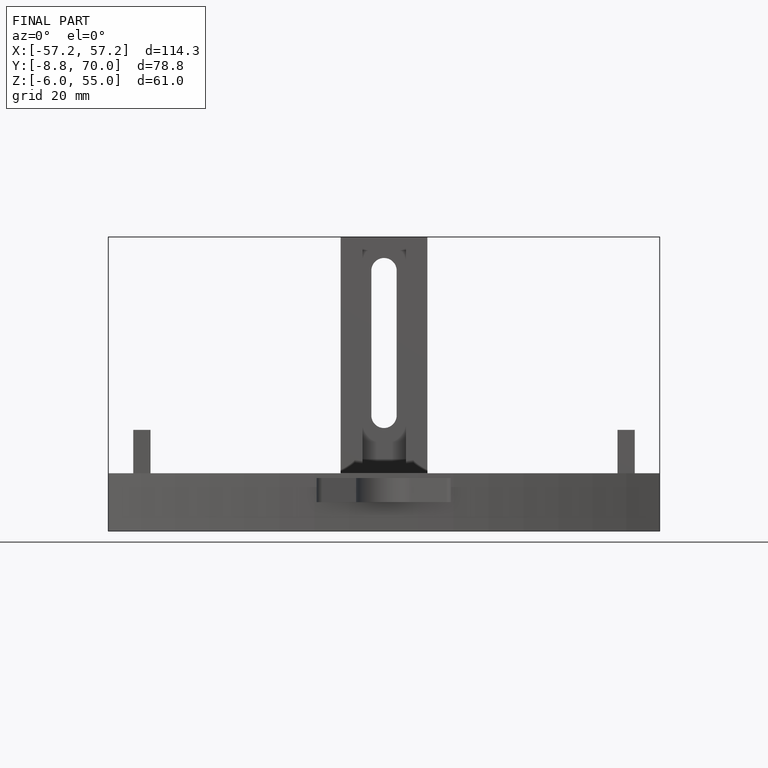
[diagram: finished part — front view with bounding-box wireframe]
